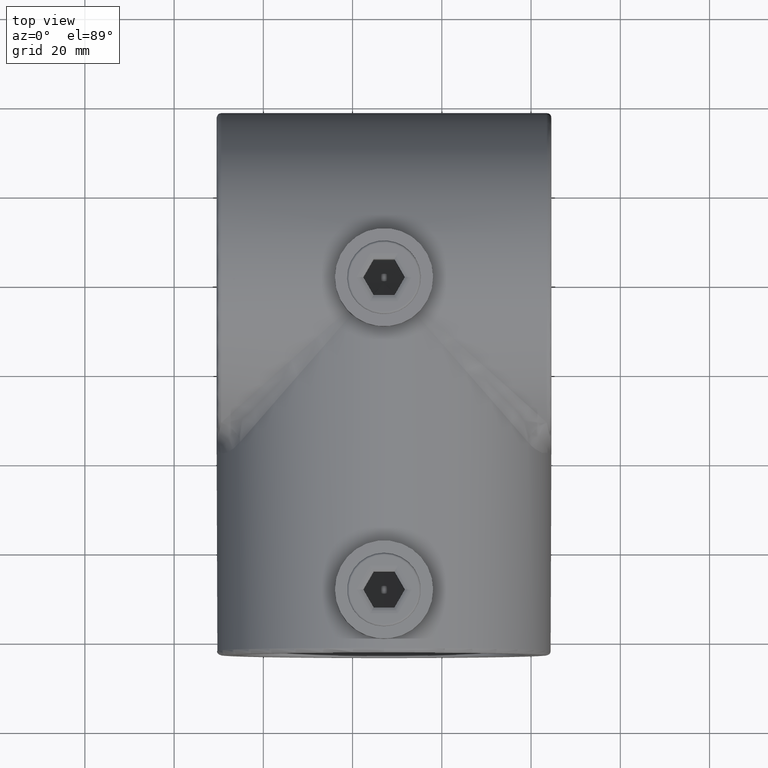
[diagram: clean part render]
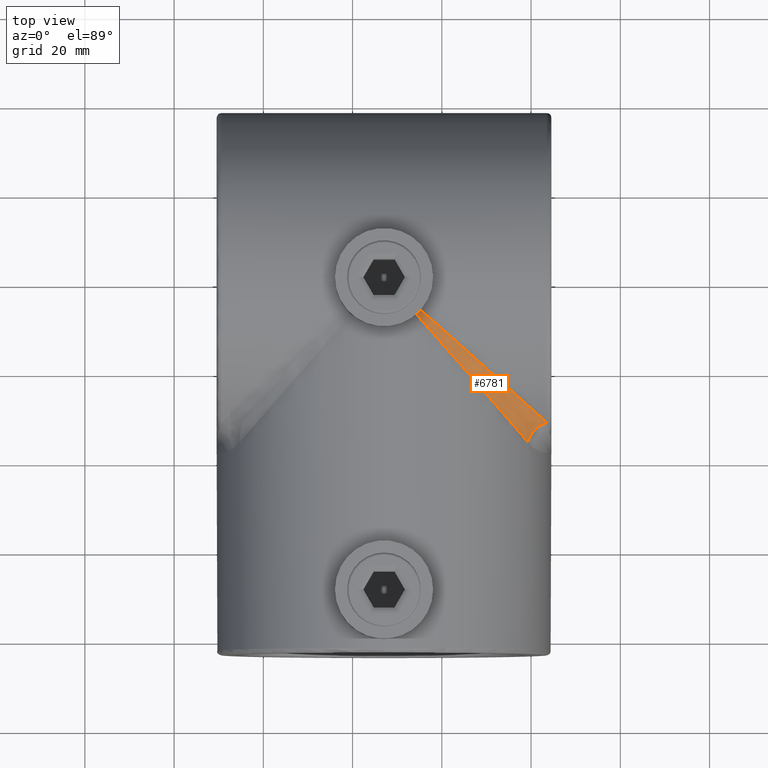
[diagram: same view with one face highlighted and labeled with its STEP entity id]
A machine part, top view. The second image highlights one B-rep face of the part: STEP entity #6781.
In plain terms, the highlighted face is a freeform B-spline surface patch.
Its self-contained STEP definition (entity closure, byte-faithful):
#362 = CARTESIAN_POINT ( 'NONE',  ( 32.20588235294117396, 47.50000000000000711, 19.21018328565638811 ) ) ;
#543 = CARTESIAN_POINT ( 'NONE',  ( 18.11080835157149593, 65.88919164840710607, 32.97764384920193237 ) ) ;
#727 = CARTESIAN_POINT ( 'NONE',  ( 13.84003360096063773, 71.78820564622796496, 35.55357553748211785 ) ) ;
#787 = FACE_OUTER_BOUND ( 'NONE', #1811, .T. ) ;
#1417 = CARTESIAN_POINT ( 'NONE',  ( 36.50000000000000000, 51.79411764705883314, 19.21018328565639877 ) ) ;
#1771 = CARTESIAN_POINT ( 'NONE',  ( 13.02191805806622682, 70.97808194195462761, 35.28331517478098789 ) ) ;
#1811 = EDGE_LOOP ( 'NONE', ( #11734, #6527, #11445, #11033 ) ) ;
#1822 = CARTESIAN_POINT ( 'NONE',  ( 12.21179435378397038, 70.15996639903234211, 35.55357553747705879 ) ) ;
#2533 = EDGE_CURVE ( 'NONE', #4680, #11128, #13560, .T. ) ;
#2570 = EDGE_CURVE ( 'NONE', #11128, #4390, #10995, .T. ) ;
#2730 = CARTESIAN_POINT ( 'NONE',  ( 7.092858325814984433, 75.96142723074302694, 36.82310905898518882 ) ) ;
#3756 = EDGE_CURVE ( 'NONE', #7574, #4680, #12501, .T. ) ;
#4014 = CARTESIAN_POINT ( 'NONE',  ( 20.24315425275524660, 66.13839330639243030, 34.69313233097675209 ) ) ;
#4302 = CARTESIAN_POINT ( 'NONE',  ( 7.277838007955297783, 75.75178359098399028, 36.78699598947924443 ) ) ;
#4390 = VERTEX_POINT ( 'NONE', #5806 ) ;
#4680 = VERTEX_POINT ( 'NONE', #9940 ) ;
#4853 = CARTESIAN_POINT ( 'NONE',  ( 26.84702143641724703, 60.31145167374572935, 29.18967853596241824 ) ) ;
#5030 = CARTESIAN_POINT ( 'NONE',  ( 31.90809008366960597, 52.09190991640986823, 19.94252259452302312 ) ) ;
#5158 = CARTESIAN_POINT ( 'NONE',  ( 7.621513691664302925, 76.05502684131545266, 36.71900413839080812 ) ) ;
#5806 = CARTESIAN_POINT ( 'NONE',  ( 32.20588235294117396, 47.50000000000000711, 19.21018328565639877 ) ) ;
#5937 = CARTESIAN_POINT ( 'NONE',  ( 17.86160669360757680, 63.75684574724477471, 34.69313233097674498 ) ) ;
#5943 = CARTESIAN_POINT ( 'NONE',  ( 19.33559591871258831, 66.93918007170744033, 33.49795632889625097 ) ) ;
#6035 = CARTESIAN_POINT ( 'NONE',  ( 9.678777031181889257, 73.03071936466803038, 36.32501002585189553 ) ) ;
#6078 = CARTESIAN_POINT ( 'NONE',  ( 17.06081992828064031, 64.66440408129446382, 33.49795632890131003 ) ) ;
#6527 = ORIENTED_EDGE ( 'NONE', *, *, #10016, .F. ) ;
#6781 = ADVANCED_FACE ( 'NONE', ( #787 ), #8360, .F. ) ;
#7032 = CARTESIAN_POINT ( 'NONE',  ( 26.92930664123430162, 57.07069335875959837, 26.28128957937125421 ) ) ;
#7158 = CARTESIAN_POINT ( 'NONE',  ( 8.038572769256981942, 76.90714167418501290, 36.82310905898518882 ) ) ;
#7208 = CARTESIAN_POINT ( 'NONE',  ( 33.09850893542374450, 50.90149106457626971, 17.71369435199761000 ) ) ;
#7434 = CARTESIAN_POINT ( 'NONE',  ( 7.944973158684550896, 76.37848630833570951, 36.71900413839080812 ) ) ;
#7574 = VERTEX_POINT ( 'NONE', #4302 ) ;
#7744 =( BOUNDED_CURVE ( )  B_SPLINE_CURVE ( 3, ( #11267, #12304, #5937, #10135 ),
 .UNSPECIFIED., .F., .F. ) 
 B_SPLINE_CURVE_WITH_KNOTS ( ( 4, 4 ),
 ( 3.679420324257379527, 4.517073853112647974 ),
 .UNSPECIFIED. ) 
 CURVE ( )  GEOMETRIC_REPRESENTATION_ITEM ( )  RATIONAL_B_SPLINE_CURVE ( ( 1.000000000000000000, 0.9423778072307001930, 0.9423778072307001930, 1.000000000000000000 ) ) 
 REPRESENTATION_ITEM ( '' )  );
#8120 = CARTESIAN_POINT ( 'NONE',  ( 10.96928063537844444, 74.32122296885376045, 36.32501002585876648 ) ) ;
#8207 = CARTESIAN_POINT ( 'NONE',  ( 29.10920713325926101, 58.31540547065684876, 27.44970416418462378 ) ) ;
#8254 = CARTESIAN_POINT ( 'NONE',  ( 24.93253308656056078, 59.06746691341895428, 28.19407624831121595 ) ) ;
#8260 = CARTESIAN_POINT ( 'NONE',  ( 8.248216409016018602, 76.72216199204470399, 36.78699598947923732 ) ) ;
#8304 = CARTESIAN_POINT ( 'NONE',  ( 34.97120179386378425, 53.14305724074647230, 21.47168122190807082 ) ) ;
#8360 =( BOUNDED_SURFACE ( )  B_SPLINE_SURFACE ( 3, 2, ( 
 ( #362, #7208, #13606 ),
 ( #9351, #5030, #8304 ),
 ( #9170, #13432, #12485 ),
 ( #12443, #7032, #8207 ),
 ( #10189, #8254, #4853 ),
 ( #12355, #13515, #11313 ),
 ( #6078, #543, #5943 ),
 ( #1822, #1771, #727 ),
 ( #6035, #11274, #8120 ),
 ( #2730, #13558, #7158 ) ),
 .UNSPECIFIED., .F., .F., .F. ) 
 B_SPLINE_SURFACE_WITH_KNOTS ( ( 4, 2, 2, 2, 4 ),
 ( 3, 3 ),
 ( 3.679420324257379527, 3.890090186764479707, 4.100760049271579888, 4.311429911778679624, 4.522099774285779361 ),
 ( 0.000000000000000000, 1.000000000000000000 ),
 .UNSPECIFIED. ) 
 GEOMETRIC_REPRESENTATION_ITEM ( )  RATIONAL_B_SPLINE_SURFACE ( (
 ( 1.000000000000000000, 0.7944879311005044187, 1.000000000000000000),
 ( 1.000000000000000000, 0.8139416052942853863, 1.000000000000000000),
 ( 1.000000000000000000, 0.8348469132459608311, 1.000000000000000000),
 ( 1.000000000000000000, 0.8757862198239658724, 1.000000000000000000),
 ( 1.000000000000000000, 0.8958012607122561866, 1.000000000000000000),
 ( 1.000000000000000000, 0.9319253248960531755, 1.000000000000000000),
 ( 1.000000000000000000, 0.9480349423437709477, 1.000000000000000000),
 ( 1.000000000000000000, 0.9742890264762350538, 1.000000000000000000),
 ( 1.000000000000000000, 0.9844489645668235145, 1.000000000000000000),
 ( 1.000000000000000000, 0.9910158847512505753, 1.000000000000000000) ) ) 
 REPRESENTATION_ITEM ( '' )  SURFACE ( )  );
#8440 = DIRECTION ( 'NONE',  ( -0.4559297576006686170, 0.4559297576006686170, 0.7643664777241288011 ) ) ;
#9170 = CARTESIAN_POINT ( 'NONE',  ( 29.26881913962095894, 50.82867164176361996, 23.59069479710591111 ) ) ;
#9351 = CARTESIAN_POINT ( 'NONE',  ( 30.85694275926136143, 49.02879820617262396, 21.47168122189495065 ) ) ;
#9940 = CARTESIAN_POINT ( 'NONE',  ( 8.248216409016018602, 76.72216199204470399, 36.78699598947923732 ) ) ;
#10016 = EDGE_CURVE ( 'NONE', #4390, #7574, #7744, .T. ) ;
#10135 = CARTESIAN_POINT ( 'NONE',  ( 7.277838007955297783, 75.75178359098399028, 36.78699598947924443 ) ) ;
#10189 = CARTESIAN_POINT ( 'NONE',  ( 23.68854832624979423, 57.15297856358275652, 29.18967853596556239 ) ) ;
#10511 = CARTESIAN_POINT ( 'NONE',  ( 8.248216409016018602, 76.72216199204470399, 36.78699598947923732 ) ) ;
#10705 = CARTESIAN_POINT ( 'NONE',  ( 36.50000000000000000, 51.79411764705883314, 19.21018328565639877 ) ) ;
#10995 = CIRCLE ( 'NONE', #13299, 5.000000000000000888 ) ;
#11033 = ORIENTED_EDGE ( 'NONE', *, *, #2533, .F. ) ;
#11128 = VERTEX_POINT ( 'NONE', #1417 ) ;
#11267 = CARTESIAN_POINT ( 'NONE',  ( 32.20588235294117396, 47.50000000000000711, 19.21018328565639877 ) ) ;
#11274 = CARTESIAN_POINT ( 'NONE',  ( 10.32420520496091498, 73.67579479518335006, 36.16665102528565257 ) ) ;
#11313 = CARTESIAN_POINT ( 'NONE',  ( 21.96013578300487268, 64.62340960323477645, 32.21385415367267768 ) ) ;
#11445 = ORIENTED_EDGE ( 'NONE', *, *, #2570, .F. ) ;
#11734 = ORIENTED_EDGE ( 'NONE', *, *, #3756, .F. ) ;
#11779 = CARTESIAN_POINT ( 'NONE',  ( 7.277838007955297783, 75.75178359098399028, 36.78699598947924443 ) ) ;
#12304 = CARTESIAN_POINT ( 'NONE',  ( 26.67903432320487056, 53.76376110036783018, 28.47594690599502698 ) ) ;
#12355 = CARTESIAN_POINT ( 'NONE',  ( 19.37659039676972483, 62.03986421699513443, 32.21385415366953708 ) ) ;
#12443 = CARTESIAN_POINT ( 'NONE',  ( 25.68459452934026643, 54.89079286674701308, 27.44970416418774661 ) ) ;
#12485 = CARTESIAN_POINT ( 'NONE',  ( 33.17132835823013437, 54.73118086038194718, 23.59069479710903394 ) ) ;
#12501 = B_SPLINE_CURVE_WITH_KNOTS ( 'NONE', 3,
 ( #11779, #5158, #7434, #10511 ),
 .UNSPECIFIED., .F., .F.,
 ( 4, 4 ),
 ( 0.000000000000000000, 0.001372322295413986063 ),
 .UNSPECIFIED. ) ;
#12674 = DIRECTION ( 'NONE',  ( 0.8588235294117645413, 0.000000000000000000, 0.5122715542841708158 ) ) ;
#12805 = CARTESIAN_POINT ( 'NONE',  ( 30.23623889963218048, 57.32096567679514720, 28.47594690599503409 ) ) ;
#13299 = AXIS2_PLACEMENT_3D ( 'NONE', #13750, #8440, #12674 ) ;
#13432 = CARTESIAN_POINT ( 'NONE',  ( 30.42710830624405105, 53.57289169376237936, 22.16346090029911053 ) ) ;
#13515 = CARTESIAN_POINT ( 'NONE',  ( 20.52402318061842124, 63.47597681940126790, 31.52747147675752259 ) ) ;
#13558 = CARTESIAN_POINT ( 'NONE',  ( 7.557103253792411657, 76.44289674620758035, 36.73368631368283843 ) ) ;
#13560 =( BOUNDED_CURVE ( )  B_SPLINE_CURVE ( 3, ( #8260, #4014, #12805, #10705 ),
 .UNSPECIFIED., .F., .T. ) 
 B_SPLINE_CURVE_WITH_KNOTS ( ( 4, 4 ),
 ( 1.766111454066938480, 2.603764982922206705 ),
 .UNSPECIFIED. ) 
 CURVE ( )  GEOMETRIC_REPRESENTATION_ITEM ( )  RATIONAL_B_SPLINE_CURVE ( ( 1.000000000000000000, 0.9423778072307001930, 0.9423778072307001930, 1.000000000000000000 ) ) 
 REPRESENTATION_ITEM ( '' )  );
#13606 = CARTESIAN_POINT ( 'NONE',  ( 36.50000000000000000, 51.79411764705883314, 19.21018328565638811 ) ) ;
#13750 = CARTESIAN_POINT ( 'NONE',  ( 36.50000000000000000, 47.50000000000000711, 21.77154105707725762 ) ) ;